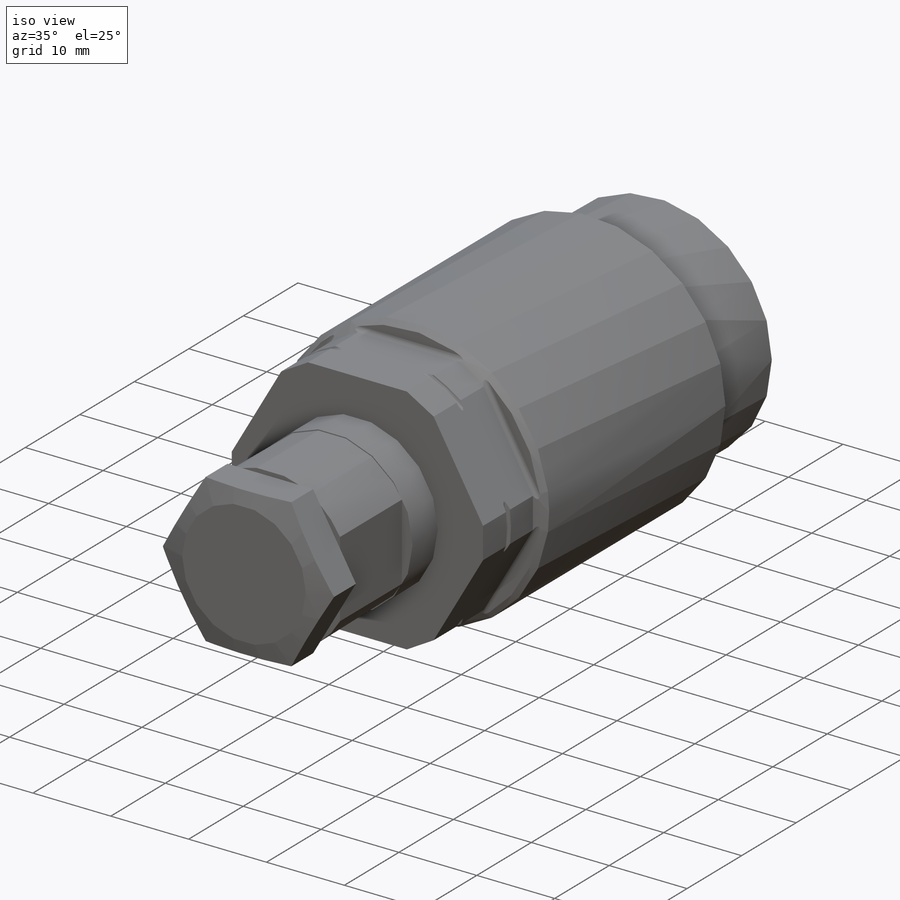
[diagram: iso view]
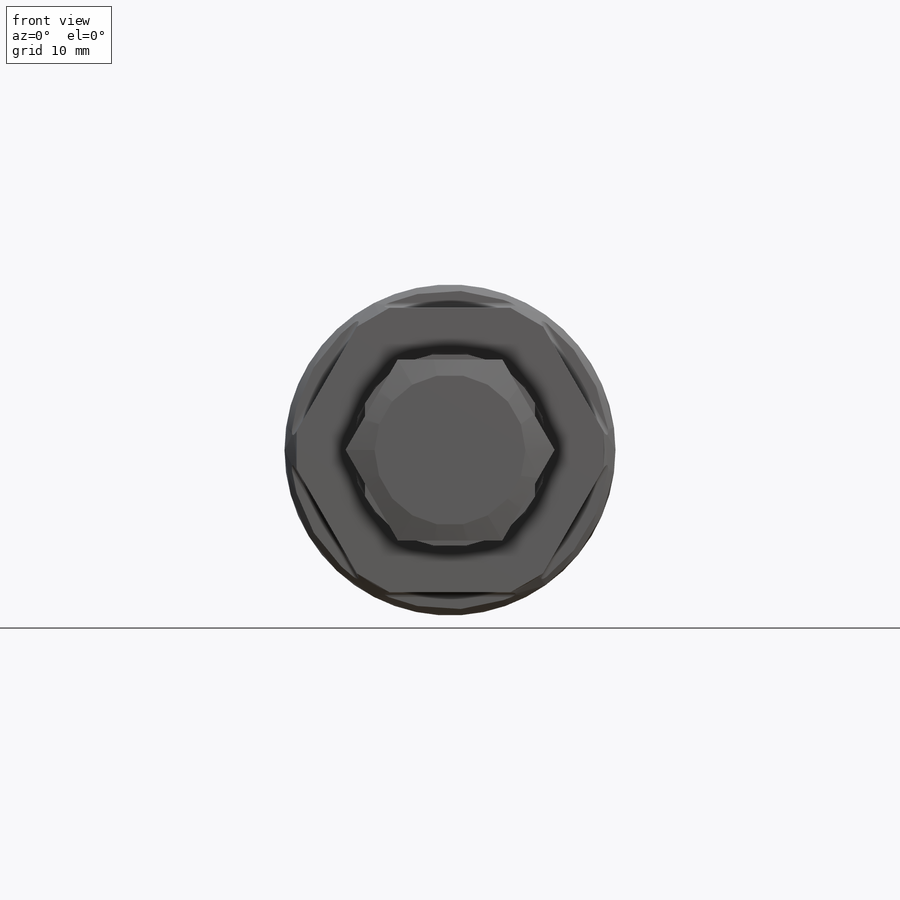
[diagram: front view]
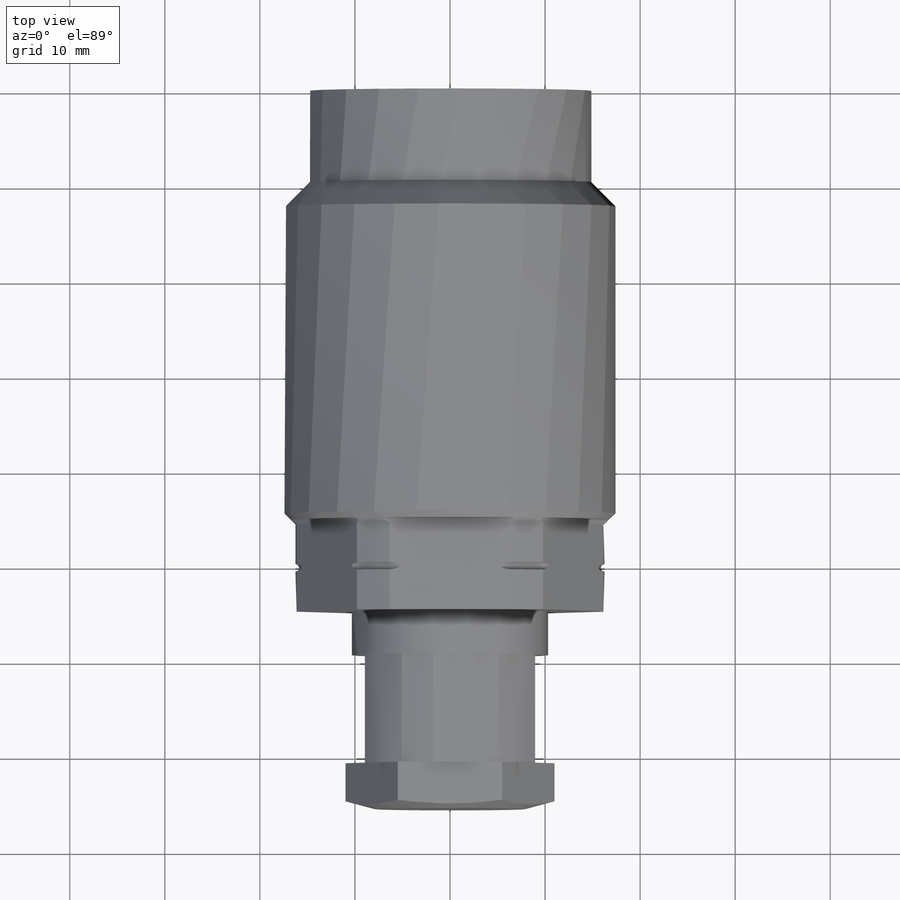
[diagram: top view]
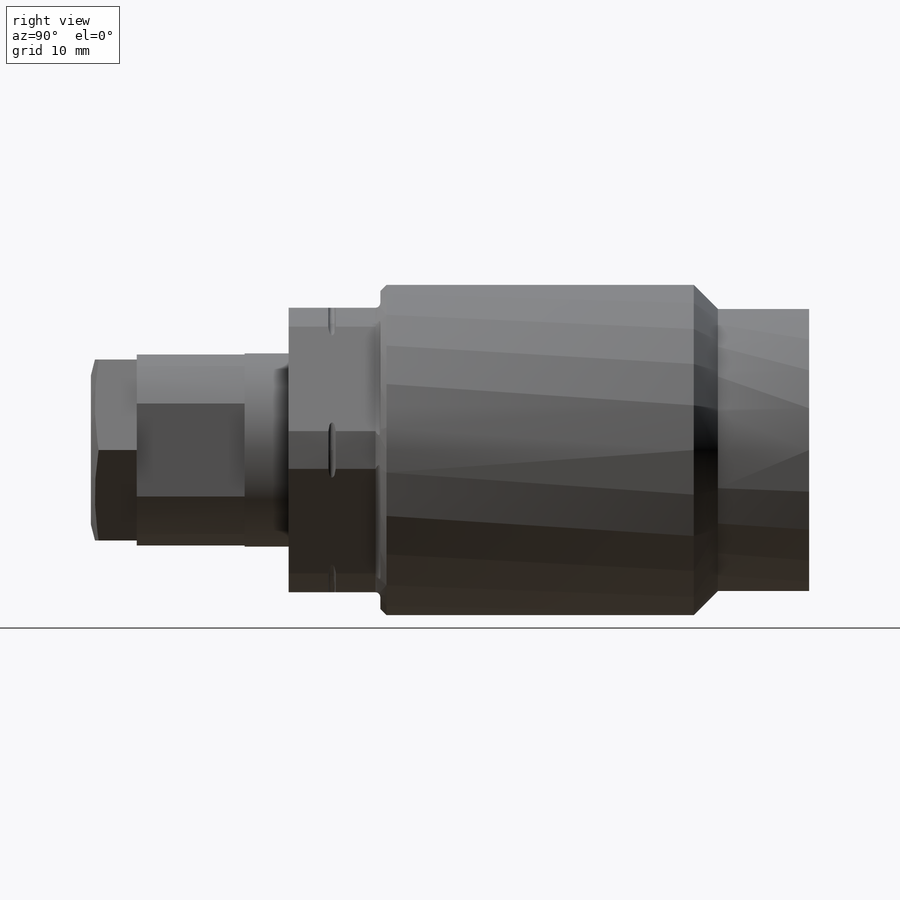
[diagram: right view]
SOLIDWORKS PART (.sldprt)
format: sldprt  version: not decoded by parser v0  size: 389,120 bytes
history: native  units: mm
features: sketch x9, cut_extrude x3, cut_revolve x3, revolve x2, material x1, pattern_circular x1, extrude x1 (+13 scaffold rows collapsed)
feature tree (33):
  scaffold x13  (default folders/planes/origin — collapsed)
  material  "Alloy Steel"
  sketch  "Sketch1"  dims[c1.D1=27.9908mm c1.D2=4.6736mm c1.D3=0.8128mm c1.D4=24.0792mm c1.D5=29.7434mm c1.D6=9.6012mm c1.D7=34.8234mm c1.D8=~16.415711mm c2.D8=45.0deg c2.D9=54.7624mm c2.D10=32.512mm c2.D11=~8.100487mm c3.D11=45.0deg c3.D12=9.144mm]
  revolve  "Revolve1"  Angle=360deg
  sketch  "Sketch2"  dims[D4=0.508mm D1=29.9339mm D2=9.652mm D3=3.175mm]
  cut_extrude  "Cut-Extrude1"  [1 undecoded]
  pattern_circular  "CirPattern1"  Count=6 Angle=360deg
  sketch  "Sketch3"  dims[c1.D1=0.8128mm c1.D2=20.6502mm c1.D3=57.0484mm c1.D4=1.524mm c1.D5=17.4752mm c2.D3=85.827mm c2.D1=4.826mm c3.D3=75.565mm]
  revolve  "Revolve2"  Angle=360deg
  sketch  "Sketch4"  dims[D1=11.9888mm]
  cut_extrude  "Cut-Extrude2"  Depth=7.874mm
  sketch  "Sketch5"  dims[D3=0.762mm D1=4.572mm D2=16.256mm D4=3.175mm]
  cut_revolve  "Cut-Revolve1"  Angle=360deg
  sketch  "Sketch10"  dims[D1=17.907mm D2=11.3538mm]
  cut_extrude  "Cut-Extrude3"  [1 undecoded]
  sketch  "Sketch11"  dims[D1=19.05mm]
  extrude  "Extrude2"  Depth=4.826mm
  sketch  "Sketch12"  dims[c1.D1=~3.043153mm c2.D1=15.0deg c2.D2=15.875mm]
  cut_revolve  "Cut-Revolve3"  Angle=360deg
  sketch  "Sketch13"  dims[c1.D1=11.354mm c1.D2=~0.033334mm c2.D2=~0.168213deg c3.D2=11.354mm c4.D2=~179.831787deg c5.D2=20.4mm]
  cut_revolve  "Cut-Revolve4"  Angle=360deg
decode coverage: 17 of 19 modeling features carry decoded parameters
note: ~ marks probable driven/reference dimensions
note: 2 parameter values undecoded
note: suppression state not decoded; provenance and decode notes live in map.json
